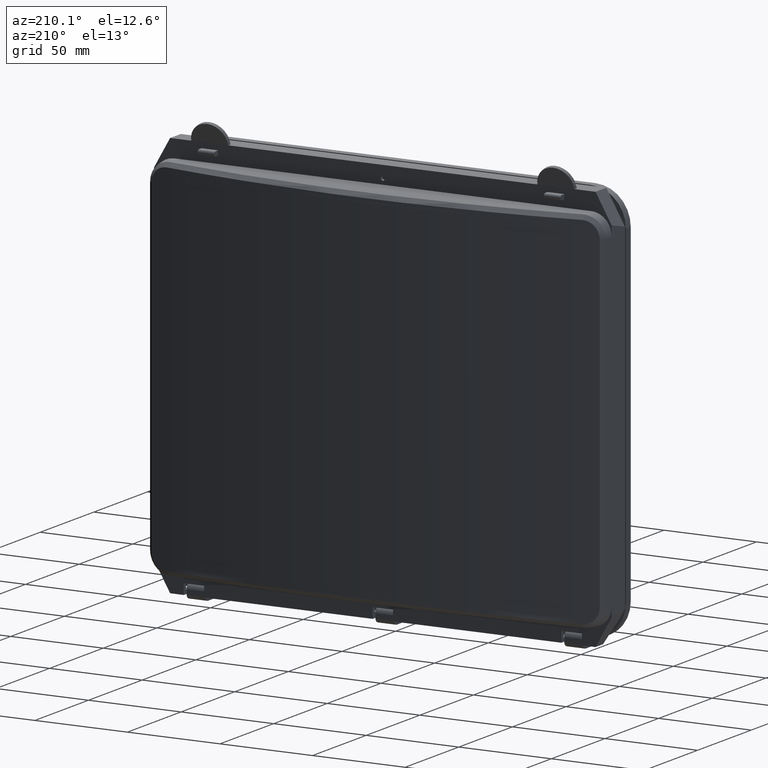
[diagram: clean part render]
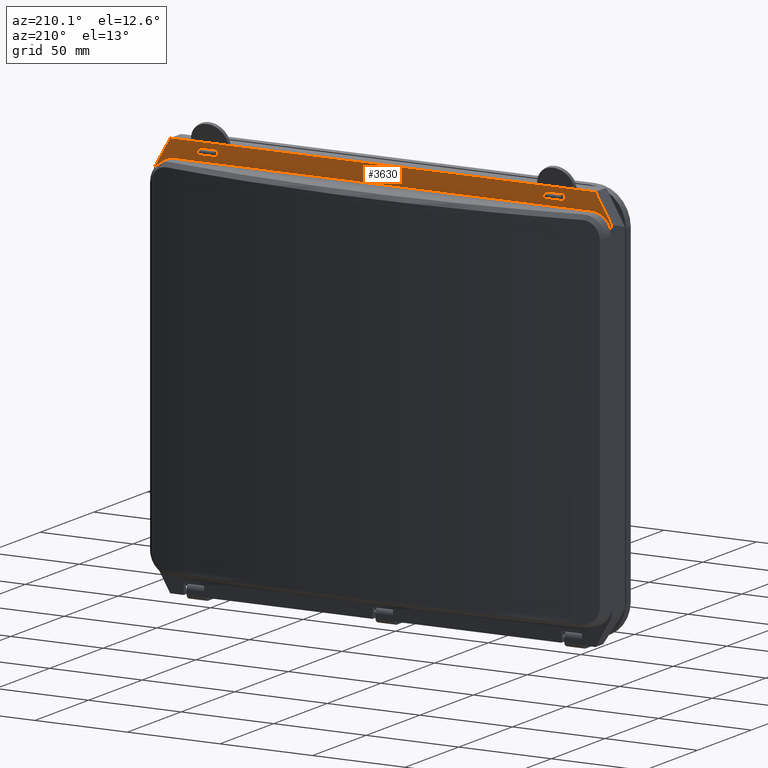
[diagram: same view with one face highlighted and labeled with its STEP entity id]
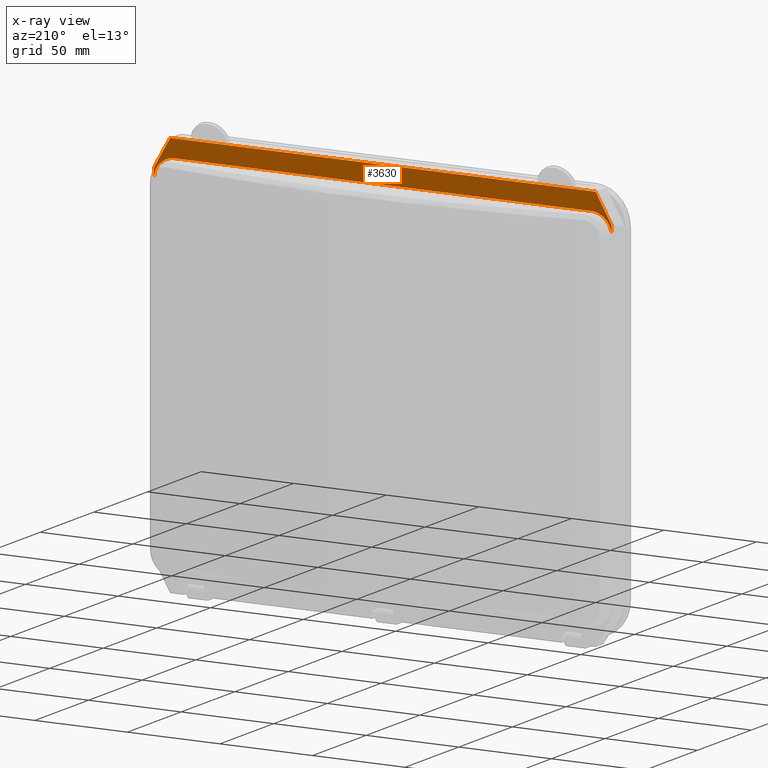
[diagram: x-ray of the same camera — body ghosted, the highlighted face saturated]
A machine part, auxiliary view. The second image highlights one B-rep face of the part: STEP entity #3630.
The next image is the same camera in x-ray: the body ghosted, the highlighted face saturated — about 0% of this face is hidden behind the body in this view.
In plain terms, the highlighted planar face has unit normal (0, -1, 0).
Its self-contained STEP definition (entity closure, byte-faithful):
#1189 = VECTOR ( 'NONE', #1195, 1000.000000000000000 ) ;
#1191 = CARTESIAN_POINT ( 'NONE',  ( 123.5945916529761100, 10.00000000000000200, -91.49744111674230900 ) ) ;
#1192 = LINE ( 'NONE', #1191, #1189 ) ;
#1195 = DIRECTION ( 'NONE',  ( -0.0000000000000000000, -0.0000000000000000000, 1.000000000000000000 ) ) ;
#1225 = DIRECTION ( 'NONE',  ( 1.000000000000000000, 0.0000000000000000000, 0.0000000000000000000 ) ) ;
#1226 = VECTOR ( 'NONE', #1225, 1000.000000000000000 ) ;
#1227 = CARTESIAN_POINT ( 'NONE',  ( -114.8948929172438900, 10.00000000000000200, 109.0000000000000000 ) ) ;
#1228 = LINE ( 'NONE', #1227, #1226 ) ;
#1250 = CARTESIAN_POINT ( 'NONE',  ( 103.5000000000000100, 10.00000000000000200, 109.0000000000000000 ) ) ;
#2633 = LINE ( 'NONE', #2635, #2656 ) ;
#2635 = CARTESIAN_POINT ( 'NONE',  ( -114.8948929172438900, 10.00000000000000200, 109.0000000000000000 ) ) ;
#2654 = DIRECTION ( 'NONE',  ( 1.000000000000000000, 0.0000000000000000000, 0.0000000000000000000 ) ) ;
#2656 = VECTOR ( 'NONE', #2654, 1000.000000000000000 ) ;
#2678 = DIRECTION ( 'NONE',  ( 0.0000000000000000000, -0.0000000000000000000, -1.000000000000000000 ) ) ;
#2686 = DIRECTION ( 'NONE',  ( 0.0000000000000000000, -1.000000000000000000, 0.0000000000000000000 ) ) ;
#2687 = CARTESIAN_POINT ( 'NONE',  ( -2.775557561562891400E-014, 10.00000000000000200, -308.0037920628513500 ) ) ;
#2712 = AXIS2_PLACEMENT_3D ( 'NONE', #2687, #2686, #2678 ) ;
#2713 = PLANE ( 'NONE',  #2712 ) ;
#2714 = FACE_OUTER_BOUND ( 'NONE', #3744, .T. ) ;
#2715 = FACE_BOUND ( 'NONE', #3631, .T. ) ;
#2730 = CARTESIAN_POINT ( 'NONE',  ( 0.0000000000000000000, 10.00000000000000200, 102.5000000000000000 ) ) ;
#2767 = DIRECTION ( 'NONE',  ( 0.0000000000000000000, 0.0000000000000000000, 1.000000000000000000 ) ) ;
#2768 = DIRECTION ( 'NONE',  ( 0.0000000000000000000, 1.000000000000000000, 0.0000000000000000000 ) ) ;
#2769 = AXIS2_PLACEMENT_3D ( 'NONE', #2730, #2768, #2767 ) ;
#2770 = CIRCLE ( 'NONE', #2769, 1.100000000000003600 ) ;
#2928 = CARTESIAN_POINT ( 'NONE',  ( 114.8948929172438900, 10.00000000000000200, 109.0000000000000000 ) ) ;
#3341 = CARTESIAN_POINT ( 'NONE',  ( -112.6212267044547800, 10.00000000000000200, 99.49999999999998600 ) ) ;
#3426 = CARTESIAN_POINT ( 'NONE',  ( 112.6212267044547600, 10.00000000000000200, 99.49999999999995700 ) ) ;
#3427 = CARTESIAN_POINT ( 'NONE',  ( 0.0000000000000000000, 10.00000000000000200, 103.5999999999999900 ) ) ;
#3485 = CARTESIAN_POINT ( 'NONE',  ( -119.0653177933538400, 10.00000000000000000, 99.49999999999997200 ) ) ;
#3486 = CARTESIAN_POINT ( 'NONE',  ( -123.5945916529761300, 10.00000000000000000, 94.99767200491886900 ) ) ;
#3487 = CARTESIAN_POINT ( 'NONE',  ( -123.5945916529761100, 10.00000000000000200, 88.59191854164242800 ) ) ;
#3489 =( BOUNDED_CURVE ( )  B_SPLINE_CURVE ( 3, ( #3487, #3486, #3485, #3341 ),
 .UNSPECIFIED., .F., .T. ) 
 B_SPLINE_CURVE_WITH_KNOTS ( ( 4, 4 ),
 ( 5.732422460775298500, 7.291088755123564800 ),
 .UNSPECIFIED. ) 
 CURVE ( )  GEOMETRIC_REPRESENTATION_ITEM ( )  RATIONAL_B_SPLINE_CURVE ( ( 1.000000000000000000, 0.8075882425177098900, 0.8075882425177098900, 1.000000000000000000 ) ) 
 REPRESENTATION_ITEM ( '' )  );
#3501 = EDGE_CURVE ( 'NONE', #4974, #3728, #1192, .T. ) ;
#3502 = ORIENTED_EDGE ( 'NONE', *, *, #3501, .F. ) ;
#3507 = ORIENTED_EDGE ( 'NONE', *, *, #5037, .F. ) ;
#3529 = ORIENTED_EDGE ( 'NONE', *, *, #3530, .T. ) ;
#3530 = EDGE_CURVE ( 'NONE', #4956, #3531, #1228, .T. ) ;
#3531 = VERTEX_POINT ( 'NONE', #1250 ) ;
#3630 = ADVANCED_FACE ( 'NONE', ( #2715, #2714 ), #2713, .F. ) ;
#3631 = EDGE_LOOP ( 'NONE', ( #3632, #3660 ) ) ;
#3632 = ORIENTED_EDGE ( 'NONE', *, *, #3659, .F. ) ;
#3659 = EDGE_CURVE ( 'NONE', #4859, #4963, #2770, .T. ) ;
#3660 = ORIENTED_EDGE ( 'NONE', *, *, #4962, .F. ) ;
#3722 = ORIENTED_EDGE ( 'NONE', *, *, #3725, .T. ) ;
#3724 = VERTEX_POINT ( 'NONE', #2928 ) ;
#3725 = EDGE_CURVE ( 'NONE', #3531, #3724, #2633, .T. ) ;
#3726 = ORIENTED_EDGE ( 'NONE', *, *, #3727, .T. ) ;
#3727 = EDGE_CURVE ( 'NONE', #3724, #3728, #6052, .T. ) ;
#3728 = VERTEX_POINT ( 'NONE', #6056 ) ;
#3729 = ORIENTED_EDGE ( 'NONE', *, *, #3730, .T. ) ;
#3730 = EDGE_CURVE ( 'NONE', #4970, #3741, #6050, .T. ) ;
#3731 = EDGE_CURVE ( 'NONE', #3732, #4970, #6059, .T. ) ;
#3732 = VERTEX_POINT ( 'NONE', #6078 ) ;
#3733 = ORIENTED_EDGE ( 'NONE', *, *, #3731, .T. ) ;
#3734 = ORIENTED_EDGE ( 'NONE', *, *, #3735, .F. ) ;
#3735 = EDGE_CURVE ( 'NONE', #3739, #5038, #6065, .T. ) ;
#3736 = EDGE_CURVE ( 'NONE', #5026, #4871, #6048, .T. ) ;
#3737 = ORIENTED_EDGE ( 'NONE', *, *, #3738, .T. ) ;
#3738 = EDGE_CURVE ( 'NONE', #3739, #3732, #6062, .T. ) ;
#3739 = VERTEX_POINT ( 'NONE', #6105 ) ;
#3740 = ORIENTED_EDGE ( 'NONE', *, *, #4891, .F. ) ;
#3741 = VERTEX_POINT ( 'NONE', #6104 ) ;
#3742 = ORIENTED_EDGE ( 'NONE', *, *, #3743, .T. ) ;
#3743 = EDGE_CURVE ( 'NONE', #3741, #4956, #6116, .T. ) ;
#3744 = EDGE_LOOP ( 'NONE', ( #3745, #3740, #3734, #3737, #3733, #3729, #3742, #3529, #3722, #3726, #3502, #3507 ) ) ;
#3745 = ORIENTED_EDGE ( 'NONE', *, *, #3736, .F. ) ;
#4859 = VERTEX_POINT ( 'NONE', #3427 ) ;
#4871 = VERTEX_POINT ( 'NONE', #3426 ) ;
#4891 = EDGE_CURVE ( 'NONE', #5038, #5026, #3489, .T. ) ;
#4956 = VERTEX_POINT ( 'NONE', #7334 ) ;
#4962 = EDGE_CURVE ( 'NONE', #4963, #4859, #7400, .T. ) ;
#4963 = VERTEX_POINT ( 'NONE', #7395 ) ;
#4970 = VERTEX_POINT ( 'NONE', #7382 ) ;
#4974 = VERTEX_POINT ( 'NONE', #7417 ) ;
#5026 = VERTEX_POINT ( 'NONE', #7505 ) ;
#5037 = EDGE_CURVE ( 'NONE', #4871, #4974, #7594, .T. ) ;
#5038 = VERTEX_POINT ( 'NONE', #7595 ) ;
#6047 = CARTESIAN_POINT ( 'NONE',  ( -114.8948929172438900, 10.00000000000000200, 109.0000000000000000 ) ) ;
#6048 = LINE ( 'NONE', #6061, #6069 ) ;
#6049 = VECTOR ( 'NONE', #6063, 1000.000000000000000 ) ;
#6050 = LINE ( 'NONE', #6084, #6053 ) ;
#6051 = DIRECTION ( 'NONE',  ( 1.000000000000000000, 0.0000000000000000000, 0.0000000000000000000 ) ) ;
#6052 = LINE ( 'NONE', #6058, #6085 ) ;
#6053 = VECTOR ( 'NONE', #6057, 1000.000000000000000 ) ;
#6054 = VECTOR ( 'NONE', #6051, 1000.000000000000000 ) ;
#6055 = DIRECTION ( 'NONE',  ( 0.5000000000000013300, -0.0000000000000000000, -0.8660254037844380400 ) ) ;
#6056 = CARTESIAN_POINT ( 'NONE',  ( 123.5945916529761200, 10.00000000000000900, 93.93167977916913000 ) ) ;
#6057 = DIRECTION ( 'NONE',  ( 1.000000000000000000, 0.0000000000000000000, 0.0000000000000000000 ) ) ;
#6058 = CARTESIAN_POINT ( 'NONE',  ( 125.0000000000000300, 10.00000000000000200, 91.49744111674230900 ) ) ;
#6059 = LINE ( 'NONE', #6047, #6054 ) ;
#6061 = CARTESIAN_POINT ( 'NONE',  ( -120.3797204745453500, 10.00000000000000200, 99.49999999999998600 ) ) ;
#6062 = LINE ( 'NONE', #6077, #6076 ) ;
#6063 = DIRECTION ( 'NONE',  ( -0.0000000000000000000, -0.0000000000000000000, -1.000000000000000000 ) ) ;
#6064 = CARTESIAN_POINT ( 'NONE',  ( -123.5945916529761100, 10.00000000000000200, -91.49744111674230900 ) ) ;
#6065 = LINE ( 'NONE', #6064, #6049 ) ;
#6068 = DIRECTION ( 'NONE',  ( 1.000000000000000000, 0.0000000000000000000, -1.152834360563991800E-016 ) ) ;
#6069 = VECTOR ( 'NONE', #6068, 1000.000000000000000 ) ;
#6075 = DIRECTION ( 'NONE',  ( 0.5000000000000013300, 0.0000000000000000000, 0.8660254037844380400 ) ) ;
#6076 = VECTOR ( 'NONE', #6075, 999.9999999999997700 ) ;
#6077 = CARTESIAN_POINT ( 'NONE',  ( -125.0000000000000300, 10.00000000000000200, 91.49744111674230900 ) ) ;
#6078 = CARTESIAN_POINT ( 'NONE',  ( -114.8948929172438900, 10.00000000000000200, 109.0000000000000000 ) ) ;
#6084 = CARTESIAN_POINT ( 'NONE',  ( -114.8948929172438900, 10.00000000000000200, 109.0000000000000000 ) ) ;
#6085 = VECTOR ( 'NONE', #6055, 999.9999999999997700 ) ;
#6104 = CARTESIAN_POINT ( 'NONE',  ( -83.50000000000000000, 10.00000000000000200, 109.0000000000000000 ) ) ;
#6105 = CARTESIAN_POINT ( 'NONE',  ( -123.5945916529761100, 9.999999999999994700, 93.93167977916908700 ) ) ;
#6113 = DIRECTION ( 'NONE',  ( 1.000000000000000000, 0.0000000000000000000, 0.0000000000000000000 ) ) ;
#6114 = VECTOR ( 'NONE', #6113, 1000.000000000000000 ) ;
#6115 = CARTESIAN_POINT ( 'NONE',  ( -114.8948929172438900, 10.00000000000000200, 109.0000000000000000 ) ) ;
#6116 = LINE ( 'NONE', #6115, #6114 ) ;
#7334 = CARTESIAN_POINT ( 'NONE',  ( 83.50000000000000000, 9.999999999999984000, 108.9999999999999900 ) ) ;
#7382 = CARTESIAN_POINT ( 'NONE',  ( -103.5000000000000000, 9.999999999999994700, 109.0000000000000300 ) ) ;
#7395 = CARTESIAN_POINT ( 'NONE',  ( 1.347066989204610100E-016, 10.00000000000000200, 101.3999999999999900 ) ) ;
#7396 = DIRECTION ( 'NONE',  ( 0.0000000000000000000, 0.0000000000000000000, 1.000000000000000000 ) ) ;
#7397 = DIRECTION ( 'NONE',  ( 0.0000000000000000000, 1.000000000000000000, 0.0000000000000000000 ) ) ;
#7398 = CARTESIAN_POINT ( 'NONE',  ( 0.0000000000000000000, 10.00000000000000200, 102.5000000000000000 ) ) ;
#7399 = AXIS2_PLACEMENT_3D ( 'NONE', #7398, #7397, #7396 ) ;
#7400 = CIRCLE ( 'NONE', #7399, 1.100000000000003600 ) ;
#7417 = CARTESIAN_POINT ( 'NONE',  ( 123.5945916529761100, 10.00000000000000200, 88.59191854164237200 ) ) ;
#7505 = CARTESIAN_POINT ( 'NONE',  ( -112.6212267044547800, 10.00000000000000200, 99.49999999999998600 ) ) ;
#7565 = CARTESIAN_POINT ( 'NONE',  ( 123.5945916529761100, 10.00000000000000200, 88.59191854164237200 ) ) ;
#7566 = CARTESIAN_POINT ( 'NONE',  ( 123.5945916529761500, 10.00000000000000400, 94.99767200491884000 ) ) ;
#7567 = CARTESIAN_POINT ( 'NONE',  ( 119.0653177933538300, 10.00000000000000400, 99.49999999999998600 ) ) ;
#7568 = CARTESIAN_POINT ( 'NONE',  ( 112.6212267044547600, 10.00000000000000200, 99.49999999999995700 ) ) ;
#7594 =( BOUNDED_CURVE ( )  B_SPLINE_CURVE ( 3, ( #7568, #7567, #7566, #7565 ),
 .UNSPECIFIED., .F., .T. ) 
 B_SPLINE_CURVE_WITH_KNOTS ( ( 4, 4 ),
 ( 2.133689205645811000, 3.692355499994083100 ),
 .UNSPECIFIED. ) 
 CURVE ( )  GEOMETRIC_REPRESENTATION_ITEM ( )  RATIONAL_B_SPLINE_CURVE ( ( 1.000000000000000000, 0.8075882425177083300, 0.8075882425177083300, 1.000000000000000000 ) ) 
 REPRESENTATION_ITEM ( '' )  );
#7595 = CARTESIAN_POINT ( 'NONE',  ( -123.5945916529761100, 10.00000000000000200, 88.59191854164242800 ) ) ;